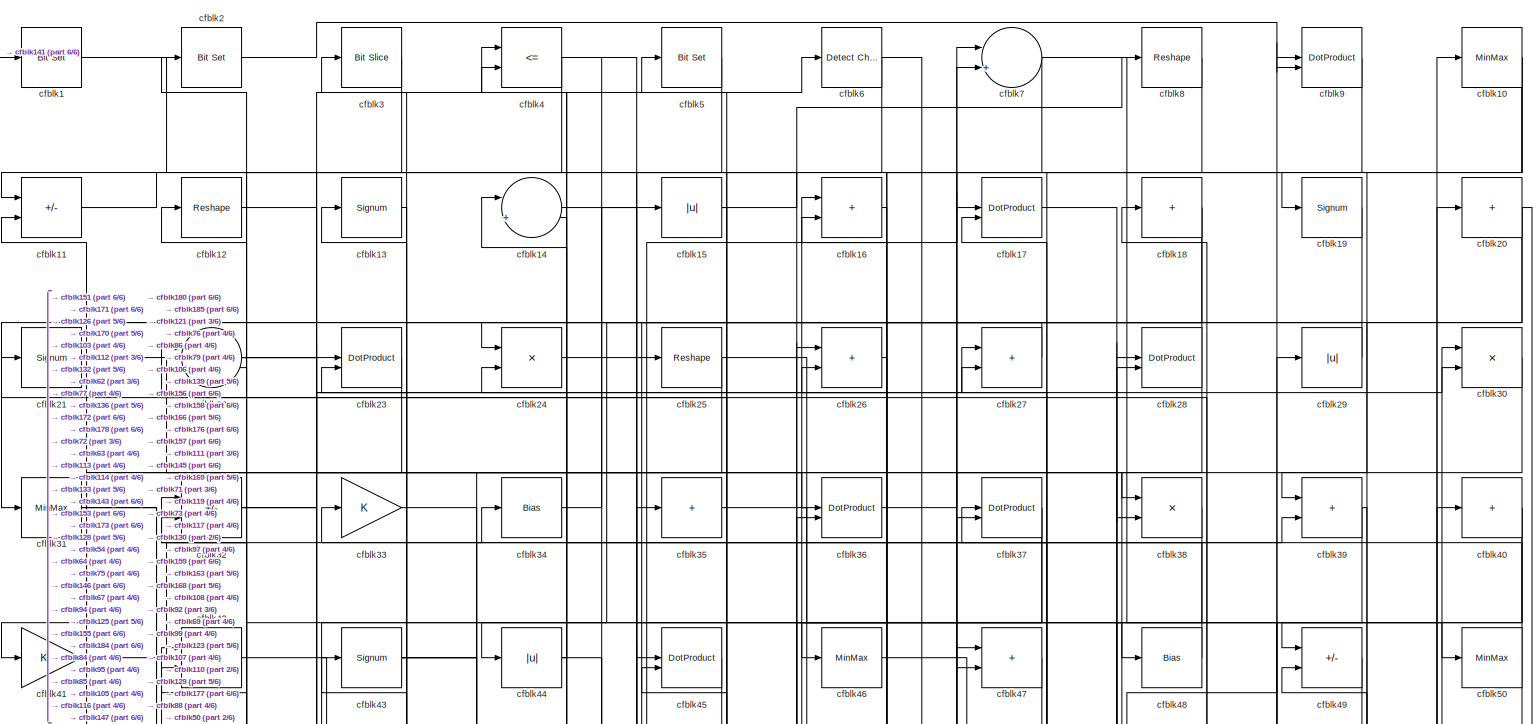
[diagram: root canvas - part 1/6, full width, top band]
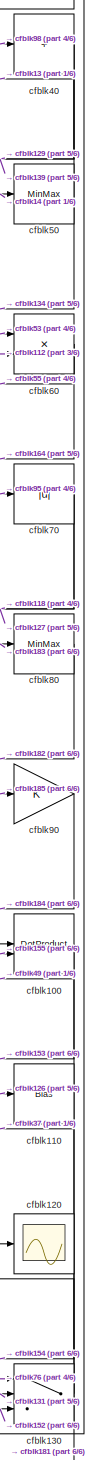
[diagram: root canvas - part 2/6, middle right region]
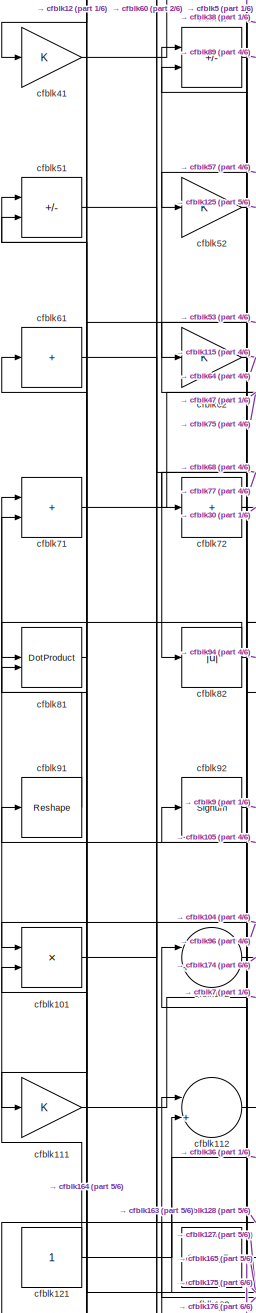
[diagram: root canvas - part 3/6, middle left region]
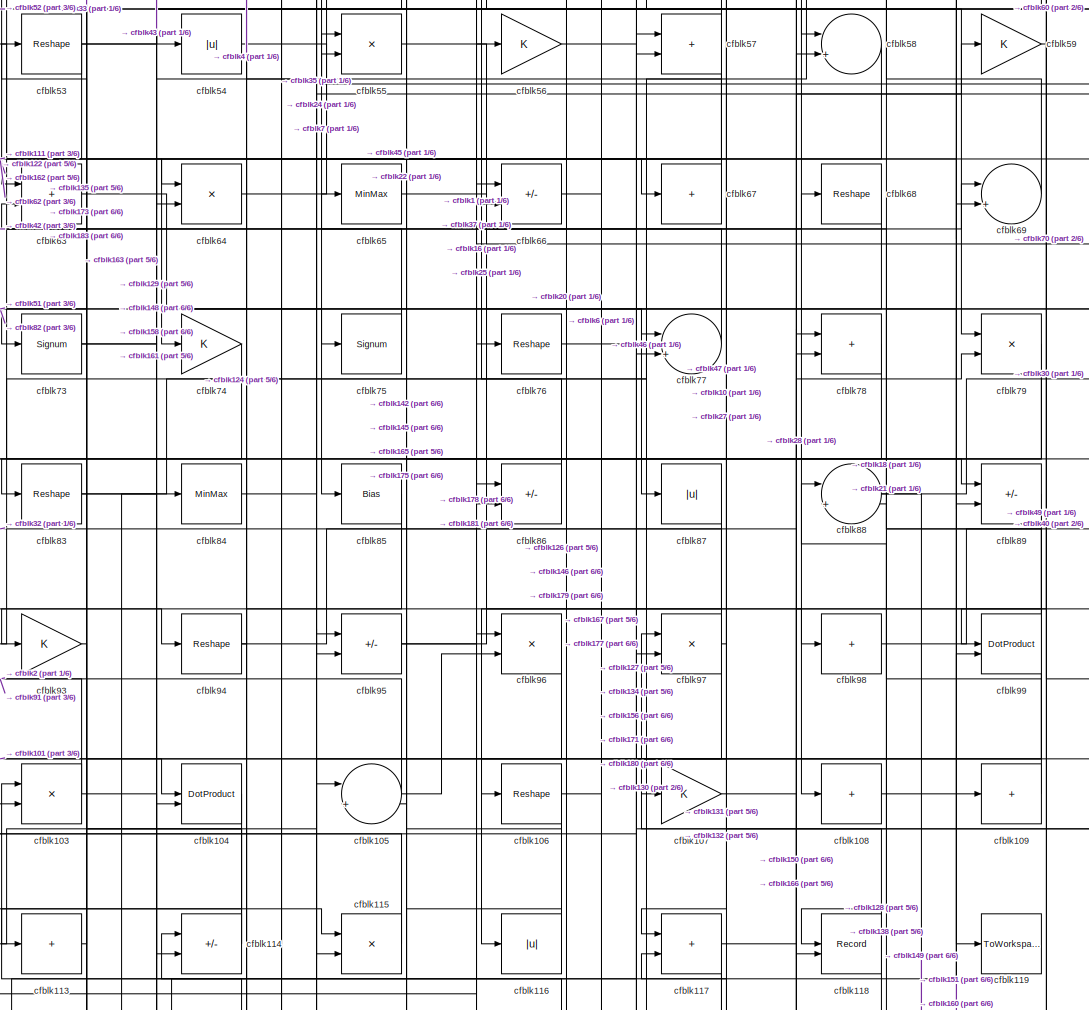
[diagram: root canvas - part 4/6, central region]
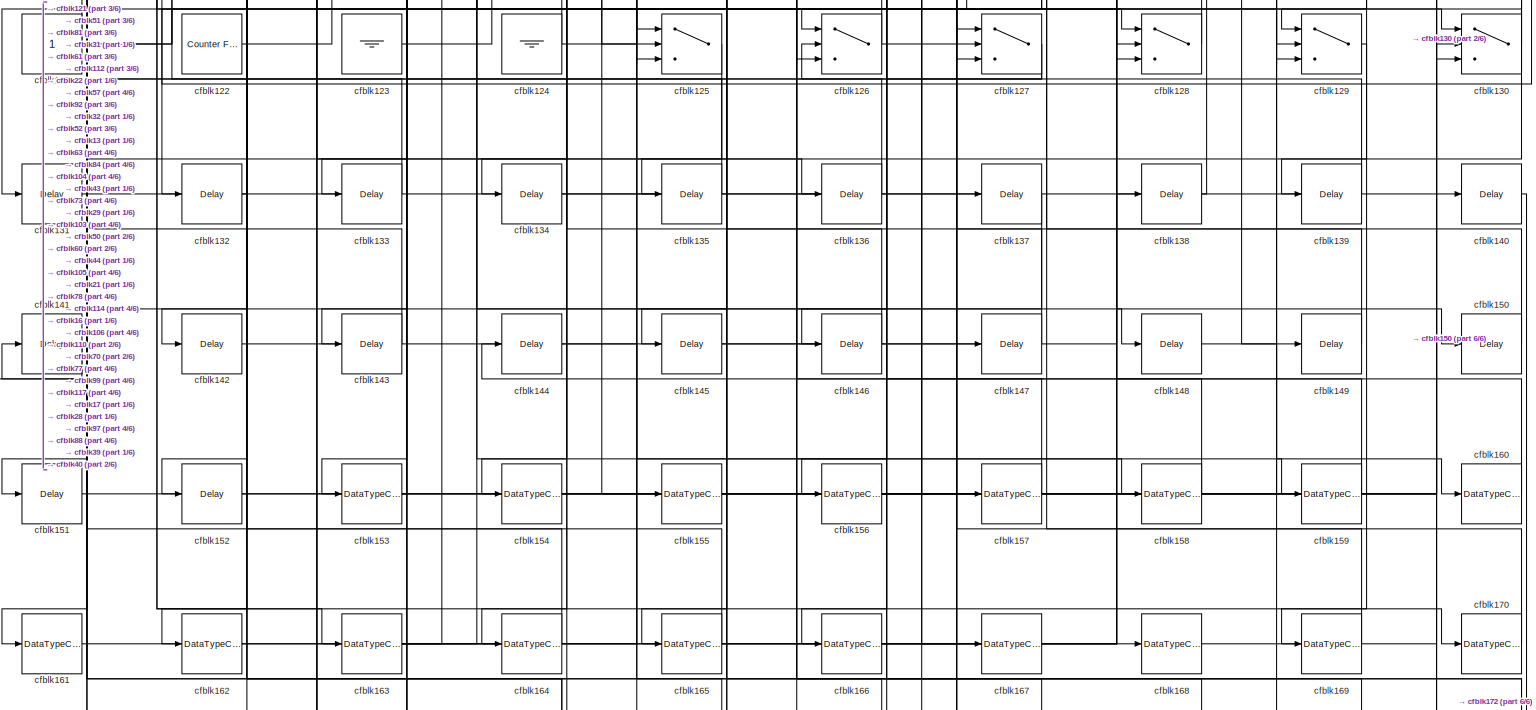
[diagram: root canvas - part 5/6, full width, bottom band]
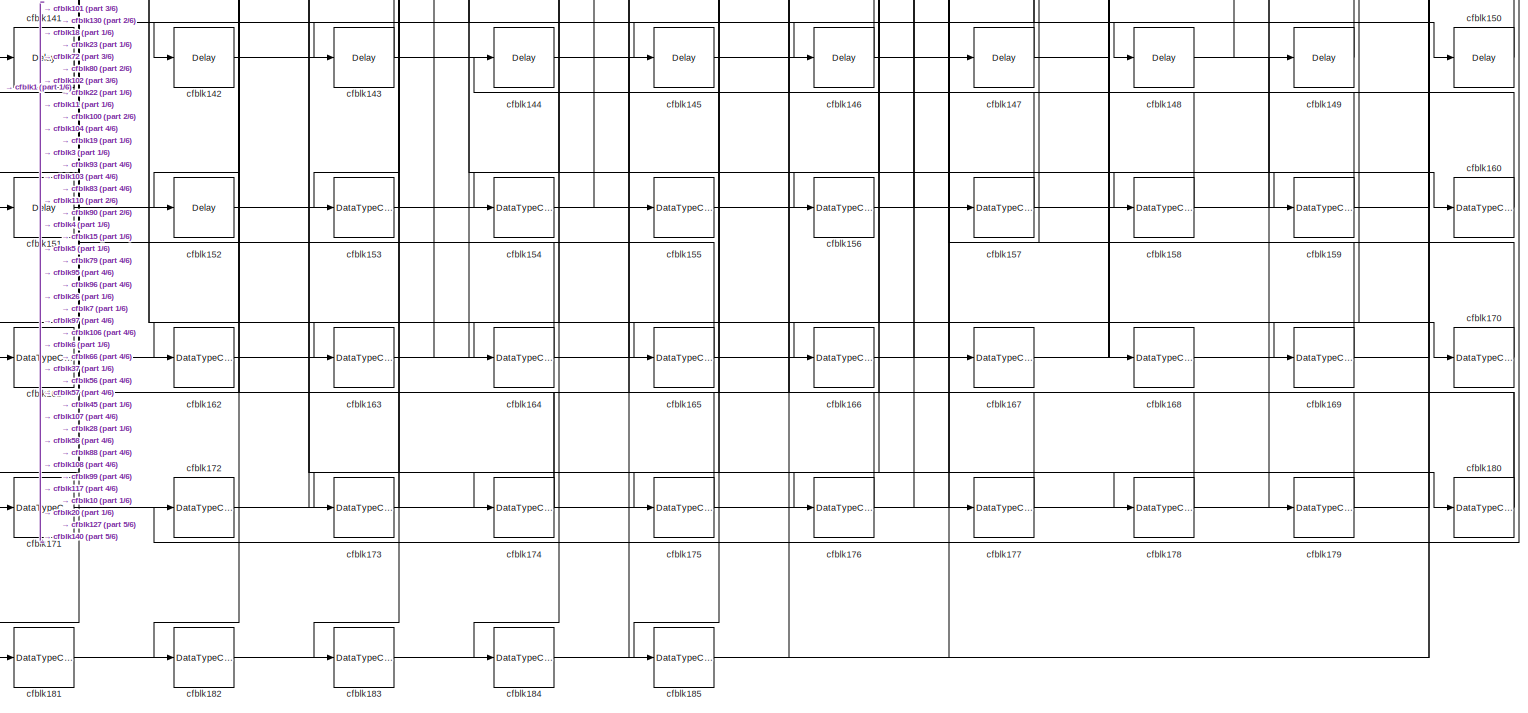
[diagram: root canvas - part 6/6, full width, bottom band]
MODEL slx_fd81477e99ef
KIND model
CONFIG AbsTol = auto
CONFIG EnableMultiTasking = off
CONFIG FixedStep = auto
CONFIG MaxStep = auto
CONFIG MinStep = auto
CONFIG RelTol = 1e-3
CONFIG SampleTimeConstraint = Unconstrained
CONFIG SolverName = VariableStepAuto
CONFIG StartTime = 0.0
CONFIG StopTime = 10.0
BLOCK [Reference] cfblk1  REF=simulink/Logic and Bit
Operations/Bit Set
  LibrarySourceBlock = hdlsllib/Logic and Bit\nOperations/Bit Set
  SourceBlock = simulink/Logic and Bit\nOperations/Bit Set
  SourceType = Bit Set
BLOCK [MinMax] cfblk10
BLOCK [DotProduct] cfblk100
  OutDataTypeStr = Inherit: Inherit via internal rule
BLOCK [Product] cfblk101
  Inputs = */
  RndMeth = Zero
  SaturateOnIntegerOverflow = on
BLOCK [Sum] cfblk102
  Inputs = |++
BLOCK [Product] cfblk103
  Inputs = */
  RndMeth = Zero
  SaturateOnIntegerOverflow = on
BLOCK [DotProduct] cfblk104
  OutDataTypeStr = Inherit: Inherit via internal rule
BLOCK [Sum] cfblk105
  Inputs = |++
BLOCK [Reshape] cfblk106
BLOCK [Gain] cfblk107
BLOCK [Sum] cfblk108
  IconShape = rectangular
  Inputs = +
BLOCK [Sum] cfblk109
  IconShape = rectangular
  Inputs = +
BLOCK [Sum] cfblk11
  IconShape = rectangular
  Inputs = +-
BLOCK [Bias] cfblk110
  Bias = 0.0
  SaturateOnIntegerOverflow = off
BLOCK [Gain] cfblk111
BLOCK [Sum] cfblk112
  Inputs = |++
BLOCK [Sum] cfblk113
  IconShape = rectangular
  Inputs = +
BLOCK [Sum] cfblk114
  IconShape = rectangular
  Inputs = +-
BLOCK [Product] cfblk115
  Inputs = */
  RndMeth = Zero
  SaturateOnIntegerOverflow = on
BLOCK [Abs] cfblk116
  SaturateOnIntegerOverflow = off
BLOCK [Sum] cfblk117
  IconShape = rectangular
BLOCK [Record] cfblk118
  CompatibilityTag = XY
  FileSettingsInternal = {"entries":[{"content":{"excelSettings":{"content":{},"type":"Streamout.ExcelSettings"}},"type":"Streamout.FileSettingStorage","uuid":""}],"packageUris":["http:\/\/schema.mathworks.com\/mf0\/streamout_blocks\/R2020a"],"version":"1.0"}
  Layout = [1 1]
  SignalsInternal = {"entries":[{"content":{"signals":[{"content":{"blockPath":[],"dimensions":[1],"domain":"","lineColor":"#a2142f","plots":[1],"port":1,"sid":[""],"signalID":379,"signalName":"cfblk70"},"type":"RecordBlkView.Signal","uuid":""},{"content":{"blockPath":[],"dimensions":[1],"domain":"","lineColor":"#139fff","plots":[1],"port":2,"sid":[""],"signalID":383,"signalName":"cfblk89"},"type":"RecordBlkView.Sign...<+160ch>
  VisualizationBindings = {"xyplotplugin":{"info":[{"series":[{"bindingParametersList":[{"parameter":"X-Axis","signalID":379,"signalName":"cfblk70"},{"parameter":"Y-Axis","signalID":383,"signalName":"cfblk89"}],"seriesID":8776}],"subplotID":1}]}}
  st = -1
BLOCK [ToWorkspace] cfblk119
  MaxDataPoints = inf
  SampleTime = -1
  SaveFormat = Timeseries
  VariableName = simout
BLOCK [Reshape] cfblk12
BLOCK [Scope] cfblk120
  Floating = off
  NumInputPorts = 1
  ScopeSpecificationString = Simulink.scopes.TimeScopeBlockCfg('CurrentConfiguration', extmgr.ConfigurationSet(extmgr.Configuration('Core','General UI',true),extmgr.Configuration('Core','Source UI',true),extmgr.Configuration('Sources','WiredSimulink',true,'DataLoggingVariableName','ScopeData2','DataLoggingSaveFormat','Array','DataLoggingLimitDataPoints',true,'DataLoggingDecimation','1'),extmgr.Configuration('Visuals','Time Do...<+868ch>
BLOCK [Constant] cfblk121
  SampleTime = -1
BLOCK [Reference] cfblk122  REF=hdlsllib/Sources/Counter
Free-Running
  SourceBlock = hdlsllib/Sources/Counter\nFree-Running
  SourceType = Counter Free-Running
BLOCK [Ground] cfblk123
BLOCK [Ground] cfblk124
BLOCK [Switch] cfblk125
  InputSameDT = off
  SaturateOnIntegerOverflow = off
BLOCK [Switch] cfblk126
  InputSameDT = off
  SaturateOnIntegerOverflow = off
BLOCK [Switch] cfblk127
  InputSameDT = off
  SaturateOnIntegerOverflow = off
BLOCK [Switch] cfblk128
  InputSameDT = off
  SaturateOnIntegerOverflow = off
BLOCK [Switch] cfblk129
  InputSameDT = off
  SaturateOnIntegerOverflow = off
BLOCK [Signum] cfblk13
BLOCK [Switch] cfblk130
  InputSameDT = off
  SaturateOnIntegerOverflow = off
BLOCK [Delay] cfblk131
  InputPortMap = u0
  SampleTime = 1
BLOCK [Delay] cfblk132
  InputPortMap = u0
  SampleTime = 1
BLOCK [Delay] cfblk133
  InputPortMap = u0
  SampleTime = 1
BLOCK [Delay] cfblk134
  InputPortMap = u0
  SampleTime = 1
BLOCK [Delay] cfblk135
  InputPortMap = u0
  SampleTime = 1
BLOCK [Delay] cfblk136
  InputPortMap = u0
  SampleTime = 1
BLOCK [Delay] cfblk137
  InputPortMap = u0
  SampleTime = 1
BLOCK [Delay] cfblk138
  InputPortMap = u0
  SampleTime = 1
BLOCK [Delay] cfblk139
  InputPortMap = u0
  SampleTime = 1
BLOCK [Sum] cfblk14
  Inputs = |++
BLOCK [Delay] cfblk140
  InputPortMap = u0
  SampleTime = 1
BLOCK [Delay] cfblk141
  InputPortMap = u0
  SampleTime = 1
BLOCK [Delay] cfblk142
  InputPortMap = u0
  SampleTime = 1
BLOCK [Delay] cfblk143
  InputPortMap = u0
  SampleTime = 1
BLOCK [Delay] cfblk144
  InputPortMap = u0
  SampleTime = 1
BLOCK [Delay] cfblk145
  InputPortMap = u0
  SampleTime = 1
BLOCK [Delay] cfblk146
  InputPortMap = u0
  SampleTime = 1
BLOCK [Delay] cfblk147
  InputPortMap = u0
  SampleTime = 1
BLOCK [Delay] cfblk148
  InputPortMap = u0
  SampleTime = 1
BLOCK [Delay] cfblk149
  InputPortMap = u0
  SampleTime = 1
BLOCK [Abs] cfblk15
  SaturateOnIntegerOverflow = off
BLOCK [Delay] cfblk150
  InputPortMap = u0
  SampleTime = 1
BLOCK [Delay] cfblk151
  InputPortMap = u0
  SampleTime = 1
BLOCK [Delay] cfblk152
  InputPortMap = u0
  SampleTime = 1
BLOCK [DataTypeConversion] cfblk153
  RndMeth = Floor
  SaturateOnIntegerOverflow = off
BLOCK [DataTypeConversion] cfblk154
  OutDataTypeStr = uint8
  RndMeth = Floor
  SaturateOnIntegerOverflow = off
BLOCK [DataTypeConversion] cfblk155
  OutDataTypeStr = uint8
  RndMeth = Floor
  SaturateOnIntegerOverflow = off
BLOCK [DataTypeConversion] cfblk156
  OutDataTypeStr = uint8
  RndMeth = Floor
  SaturateOnIntegerOverflow = off
BLOCK [DataTypeConversion] cfblk157
  OutDataTypeStr = uint8
  RndMeth = Floor
  SaturateOnIntegerOverflow = off
BLOCK [DataTypeConversion] cfblk158
  OutDataTypeStr = uint8
  RndMeth = Floor
  SaturateOnIntegerOverflow = off
BLOCK [DataTypeConversion] cfblk159
  OutDataTypeStr = uint8
  RndMeth = Floor
  SaturateOnIntegerOverflow = off
BLOCK [Sum] cfblk16
  IconShape = rectangular
BLOCK [DataTypeConversion] cfblk160
  OutDataTypeStr = uint8
  RndMeth = Floor
  SaturateOnIntegerOverflow = off
BLOCK [DataTypeConversion] cfblk161
  OutDataTypeStr = uint8
  RndMeth = Floor
  SaturateOnIntegerOverflow = off
BLOCK [DataTypeConversion] cfblk162
  OutDataTypeStr = uint8
  RndMeth = Floor
  SaturateOnIntegerOverflow = off
BLOCK [DataTypeConversion] cfblk163
  RndMeth = Floor
  SaturateOnIntegerOverflow = off
BLOCK [DataTypeConversion] cfblk164
  OutDataTypeStr = uint8
  RndMeth = Floor
  SaturateOnIntegerOverflow = off
BLOCK [DataTypeConversion] cfblk165
  RndMeth = Floor
  SaturateOnIntegerOverflow = off
BLOCK [DataTypeConversion] cfblk166
  OutDataTypeStr = uint8
  RndMeth = Floor
  SaturateOnIntegerOverflow = off
BLOCK [DataTypeConversion] cfblk167
  OutDataTypeStr = uint8
  RndMeth = Floor
  SaturateOnIntegerOverflow = off
BLOCK [DataTypeConversion] cfblk168
  OutDataTypeStr = uint8
  RndMeth = Floor
  SaturateOnIntegerOverflow = off
BLOCK [DataTypeConversion] cfblk169
  OutDataTypeStr = uint8
  RndMeth = Floor
  SaturateOnIntegerOverflow = off
BLOCK [DotProduct] cfblk17
  OutDataTypeStr = Inherit: Inherit via internal rule
BLOCK [DataTypeConversion] cfblk170
  OutDataTypeStr = uint8
  RndMeth = Floor
  SaturateOnIntegerOverflow = off
BLOCK [DataTypeConversion] cfblk171
  OutDataTypeStr = uint8
  RndMeth = Floor
  SaturateOnIntegerOverflow = off
BLOCK [DataTypeConversion] cfblk172
  OutDataTypeStr = uint8
  RndMeth = Floor
  SaturateOnIntegerOverflow = off
BLOCK [DataTypeConversion] cfblk173
  OutDataTypeStr = uint8
  RndMeth = Floor
  SaturateOnIntegerOverflow = off
BLOCK [DataTypeConversion] cfblk174
  RndMeth = Floor
  SaturateOnIntegerOverflow = off
BLOCK [DataTypeConversion] cfblk175
  OutDataTypeStr = uint8
  RndMeth = Floor
  SaturateOnIntegerOverflow = off
BLOCK [DataTypeConversion] cfblk176
  OutDataTypeStr = uint8
  RndMeth = Floor
  SaturateOnIntegerOverflow = off
BLOCK [DataTypeConversion] cfblk177
  RndMeth = Floor
  SaturateOnIntegerOverflow = off
BLOCK [DataTypeConversion] cfblk178
  OutDataTypeStr = uint8
  RndMeth = Floor
  SaturateOnIntegerOverflow = off
BLOCK [DataTypeConversion] cfblk179
  OutDataTypeStr = uint8
  RndMeth = Floor
  SaturateOnIntegerOverflow = off
BLOCK [Sum] cfblk18
  IconShape = rectangular
  Inputs = +
BLOCK [DataTypeConversion] cfblk180
  RndMeth = Floor
  SaturateOnIntegerOverflow = off
BLOCK [DataTypeConversion] cfblk181
  OutDataTypeStr = uint8
  RndMeth = Floor
  SaturateOnIntegerOverflow = off
BLOCK [DataTypeConversion] cfblk182
  OutDataTypeStr = uint8
  RndMeth = Floor
  SaturateOnIntegerOverflow = off
BLOCK [DataTypeConversion] cfblk183
  OutDataTypeStr = uint8
  RndMeth = Floor
  SaturateOnIntegerOverflow = off
BLOCK [DataTypeConversion] cfblk184
  OutDataTypeStr = uint8
  RndMeth = Floor
  SaturateOnIntegerOverflow = off
BLOCK [DataTypeConversion] cfblk185
  OutDataTypeStr = uint8
  RndMeth = Floor
  SaturateOnIntegerOverflow = off
BLOCK [Signum] cfblk19
BLOCK [Reference] cfblk2  REF=simulink/Logic and Bit
Operations/Bit Set
  LibrarySourceBlock = hdlsllib/Logic and Bit\nOperations/Bit Set
  SourceBlock = simulink/Logic and Bit\nOperations/Bit Set
  SourceType = Bit Set
BLOCK [Sum] cfblk20
  IconShape = rectangular
  Inputs = +
BLOCK [Signum] cfblk21
BLOCK [Sum] cfblk22
  Inputs = |++
BLOCK [DotProduct] cfblk23
  OutDataTypeStr = Inherit: Inherit via internal rule
BLOCK [Product] cfblk24
  Inputs = */
  RndMeth = Zero
  SaturateOnIntegerOverflow = on
BLOCK [Reshape] cfblk25
BLOCK [Sum] cfblk26
  IconShape = rectangular
BLOCK [Sum] cfblk27
  IconShape = rectangular
BLOCK [DotProduct] cfblk28
  OutDataTypeStr = Inherit: Inherit via internal rule
BLOCK [Abs] cfblk29
  SaturateOnIntegerOverflow = off
BLOCK [Reference] cfblk3  REF=hdlsllib/Logic and Bit
Operations/Bit Slice
  SourceBlock = hdlsllib/Logic and Bit\nOperations/Bit Slice
  SourceType = Bit Slice
BLOCK [Product] cfblk30
  Inputs = */
  RndMeth = Zero
  SaturateOnIntegerOverflow = on
BLOCK [MinMax] cfblk31
BLOCK [Sum] cfblk32
  IconShape = rectangular
  Inputs = +-
BLOCK [Gain] cfblk33
BLOCK [Bias] cfblk34
  Bias = 0.0
  SaturateOnIntegerOverflow = off
BLOCK [Sum] cfblk35
  IconShape = rectangular
  Inputs = +
BLOCK [DotProduct] cfblk36
  OutDataTypeStr = Inherit: Inherit via internal rule
BLOCK [DotProduct] cfblk37
  OutDataTypeStr = Inherit: Inherit via internal rule
BLOCK [Product] cfblk38
  Inputs = */
  RndMeth = Zero
  SaturateOnIntegerOverflow = on
BLOCK [Sum] cfblk39
  IconShape = rectangular
BLOCK [RelationalOperator] cfblk4
  InputSameDT = off
  Operator = <=
  OutDataTypeStr = boolean
BLOCK [Sum] cfblk40
  IconShape = rectangular
  Inputs = +
BLOCK [Gain] cfblk41
BLOCK [Sum] cfblk42
  IconShape = rectangular
  Inputs = +-
BLOCK [Signum] cfblk43
BLOCK [Abs] cfblk44
  SaturateOnIntegerOverflow = off
BLOCK [DotProduct] cfblk45
  OutDataTypeStr = Inherit: Inherit via internal rule
BLOCK [MinMax] cfblk46
BLOCK [Sum] cfblk47
  IconShape = rectangular
BLOCK [Bias] cfblk48
  Bias = 0.0
  SaturateOnIntegerOverflow = off
BLOCK [Sum] cfblk49
  IconShape = rectangular
  Inputs = +-
BLOCK [Reference] cfblk5  REF=simulink/Logic and Bit
Operations/Bit Set
  LibrarySourceBlock = hdlsllib/Logic and Bit\nOperations/Bit Set
  SourceBlock = simulink/Logic and Bit\nOperations/Bit Set
  SourceType = Bit Set
BLOCK [MinMax] cfblk50
BLOCK [Sum] cfblk51
  IconShape = rectangular
  Inputs = +-
BLOCK [Gain] cfblk52
BLOCK [Reshape] cfblk53
BLOCK [Abs] cfblk54
  SaturateOnIntegerOverflow = off
BLOCK [Product] cfblk55
  Inputs = */
  RndMeth = Zero
  SaturateOnIntegerOverflow = on
BLOCK [Gain] cfblk56
BLOCK [Sum] cfblk57
  IconShape = rectangular
BLOCK [Sum] cfblk58
  Inputs = |++
BLOCK [Gain] cfblk59
BLOCK [Reference] cfblk6  REF=simulink/Logic and Bit
Operations/Detect
Change
  LibrarySourceBlock = hdlsllib/Logic and Bit\nOperations/Detect\nChange
  SourceBlock = simulink/Logic and Bit\nOperations/Detect\nChange
  SourceType = Detect Change
BLOCK [Product] cfblk60
  Inputs = */
  RndMeth = Zero
  SaturateOnIntegerOverflow = on
BLOCK [Sum] cfblk61
  IconShape = rectangular
  Inputs = +
BLOCK [Gain] cfblk62
BLOCK [Sum] cfblk63
  IconShape = rectangular
BLOCK [Product] cfblk64
  Inputs = */
  RndMeth = Zero
  SaturateOnIntegerOverflow = on
BLOCK [MinMax] cfblk65
BLOCK [Sum] cfblk66
  IconShape = rectangular
  Inputs = +-
BLOCK [Sum] cfblk67
  IconShape = rectangular
  Inputs = +
BLOCK [Reshape] cfblk68
BLOCK [Sum] cfblk69
  Inputs = |++
BLOCK [Sum] cfblk7
  Inputs = |++
BLOCK [Abs] cfblk70
  SaturateOnIntegerOverflow = off
BLOCK [Sum] cfblk71
  IconShape = rectangular
BLOCK [Sum] cfblk72
  IconShape = rectangular
  Inputs = +
BLOCK [Signum] cfblk73
BLOCK [Gain] cfblk74
BLOCK [Signum] cfblk75
BLOCK [Reshape] cfblk76
BLOCK [Sum] cfblk77
  Inputs = |++
BLOCK [Sum] cfblk78
  IconShape = rectangular
BLOCK [Product] cfblk79
  Inputs = */
  RndMeth = Zero
  SaturateOnIntegerOverflow = on
BLOCK [Reshape] cfblk8
BLOCK [MinMax] cfblk80
BLOCK [DotProduct] cfblk81
  OutDataTypeStr = Inherit: Inherit via internal rule
BLOCK [Abs] cfblk82
  SaturateOnIntegerOverflow = off
BLOCK [Reshape] cfblk83
BLOCK [MinMax] cfblk84
BLOCK [Bias] cfblk85
  Bias = 0.0
  SaturateOnIntegerOverflow = off
BLOCK [Sum] cfblk86
  IconShape = rectangular
  Inputs = +-
BLOCK [Abs] cfblk87
  SaturateOnIntegerOverflow = off
BLOCK [Sum] cfblk88
  Inputs = |++
BLOCK [Sum] cfblk89
  IconShape = rectangular
  Inputs = +-
BLOCK [DotProduct] cfblk9
  OutDataTypeStr = Inherit: Inherit via internal rule
BLOCK [Gain] cfblk90
BLOCK [Reshape] cfblk91
BLOCK [Signum] cfblk92
BLOCK [Gain] cfblk93
BLOCK [Reshape] cfblk94
BLOCK [Sum] cfblk95
  IconShape = rectangular
  Inputs = +-
BLOCK [Product] cfblk96
  Inputs = */
  RndMeth = Zero
  SaturateOnIntegerOverflow = on
BLOCK [Product] cfblk97
  Inputs = */
  RndMeth = Zero
  SaturateOnIntegerOverflow = on
BLOCK [Sum] cfblk98
  IconShape = rectangular
  Inputs = +
BLOCK [DotProduct] cfblk99
  OutDataTypeStr = Inherit: Inherit via internal rule
LINE cfblk100:1 -> cfblk153:1
LINE cfblk101:1 -> cfblk104:1
LINE cfblk102:1 -> cfblk174:1
NET cfblk103:1 -> cfblk158:1, cfblk2:1
LINE cfblk104:1 -> cfblk173:1
NET cfblk105:1 -> cfblk91:1, cfblk96:2
NET cfblk106:1 -> cfblk145:1, cfblk167:1
LINE cfblk107:1 -> cfblk150:1
LINE cfblk108:1 -> cfblk160:1
LINE cfblk109:1 -> cfblk88:2
NET cfblk10:1 -> cfblk117:1, cfblk49:1, cfblk95:2
NET cfblk110:1 -> cfblk154:1, cfblk49:2
LINE cfblk111:1 -> cfblk7:2
NET cfblk112:1 -> cfblk12:1, cfblk60:2
LINE cfblk113:1 -> cfblk33:1
NET cfblk114:1 -> cfblk43:1, cfblk53:1
LINE cfblk115:1 -> cfblk42:2
LINE cfblk116:1 -> cfblk22:1
NET cfblk117:1 -> cfblk131:1, cfblk132:1, cfblk59:1
LINE cfblk11:1 -> cfblk19:1
NET cfblk121:1 -> cfblk128:1, cfblk36:2, cfblk71:1
LINE cfblk122:1 -> cfblk97:2
LINE cfblk123:1 -> cfblk29:1
NET cfblk124:1 -> cfblk103:1, cfblk126:1
LINE cfblk125:1 -> cfblk135:1
NET cfblk126:1 -> cfblk110:1, cfblk114:1
NET cfblk127:1 -> cfblk112:2, cfblk126:2
LINE cfblk128:1 -> cfblk97:1
LINE cfblk129:1 -> cfblk169:1
LINE cfblk12:1 -> cfblk36:1
NET cfblk130:1 -> cfblk120:1, cfblk181:1, cfblk37:1
LINE cfblk131:1 -> cfblk130:2
LINE cfblk132:1 -> cfblk22:2
LINE cfblk133:1 -> cfblk81:2
LINE cfblk134:1 -> cfblk77:2
LINE cfblk135:1 -> cfblk63:2
LINE cfblk136:1 -> cfblk51:2
LINE cfblk137:1 -> cfblk161:1
LINE cfblk138:1 -> cfblk88:1
LINE cfblk139:1 -> cfblk16:2
LINE cfblk13:1 -> cfblk133:1
LINE cfblk140:1 -> cfblk172:1
LINE cfblk141:1 -> cfblk1:1
LINE cfblk142:1 -> cfblk58:2
LINE cfblk143:1 -> cfblk11:2
LINE cfblk144:1 -> cfblk159:1
LINE cfblk145:1 -> cfblk37:2
LINE cfblk146:1 -> cfblk4:2
LINE cfblk147:1 -> cfblk45:2
LINE cfblk148:1 -> cfblk179:1
LINE cfblk149:1 -> cfblk117:2
LINE cfblk14:1 -> cfblk50:1
LINE cfblk150:1 -> cfblk127:1
LINE cfblk151:1 -> cfblk99:2
LINE cfblk152:1 -> cfblk130:3
NET cfblk153:1 -> cfblk20:1, cfblk3:1
LINE cfblk154:1 -> cfblk100:1
LINE cfblk155:1 -> cfblk100:2
LINE cfblk156:1 -> cfblk57:2
LINE cfblk157:1 -> cfblk26:1
LINE cfblk158:1 -> cfblk26:2
LINE cfblk159:1 -> cfblk28:1
NET cfblk15:1 -> cfblk185:1, cfblk8:1
LINE cfblk160:1 -> cfblk144:1
LINE cfblk161:1 -> cfblk104:2
LINE cfblk162:1 -> cfblk137:1
NET cfblk163:1 -> cfblk105:1, cfblk28:2, cfblk84:1
LINE cfblk164:1 -> cfblk61:1
NET cfblk165:1 -> cfblk138:1, cfblk92:1
LINE cfblk166:1 -> cfblk78:1
LINE cfblk167:1 -> cfblk78:2
LINE cfblk168:1 -> cfblk140:1
LINE cfblk169:1 -> cfblk17:1
LINE cfblk16:1 -> cfblk166:1
LINE cfblk170:1 -> cfblk17:2
LINE cfblk171:1 -> cfblk57:1
LINE cfblk172:1 -> cfblk23:1
LINE cfblk173:1 -> cfblk23:2
NET cfblk174:1 -> cfblk101:2, cfblk141:1
LINE cfblk175:1 -> cfblk102:1
LINE cfblk176:1 -> cfblk102:2
NET cfblk177:1 -> cfblk10:1, cfblk96:1
LINE cfblk178:1 -> cfblk66:1
LINE cfblk179:1 -> cfblk66:2
LINE cfblk17:1 -> cfblk168:1
NET cfblk180:1 -> cfblk5:1, cfblk95:1
LINE cfblk181:1 -> cfblk56:1
LINE cfblk182:1 -> cfblk147:1
LINE cfblk183:1 -> cfblk80:1
LINE cfblk184:1 -> cfblk45:1
LINE cfblk185:1 -> cfblk90:1
NET cfblk18:1 -> cfblk151:1, cfblk31:1
LINE cfblk19:1 -> cfblk143:1
LINE cfblk1:1 -> cfblk76:1
NET cfblk20:1 -> cfblk106:1, cfblk112:1, cfblk39:1
LINE cfblk21:1 -> cfblk125:1
NET cfblk22:1 -> cfblk178:1, cfblk38:2, cfblk6:1
LINE cfblk23:1 -> cfblk171:1
LINE cfblk24:1 -> cfblk85:1
NET cfblk25:1 -> cfblk64:2, cfblk79:1
LINE cfblk26:1 -> cfblk156:1
LINE cfblk27:1 -> cfblk44:1
NET cfblk28:1 -> cfblk108:1, cfblk25:1
LINE cfblk29:1 -> cfblk24:1
LINE cfblk2:1 -> cfblk9:2
LINE cfblk30:1 -> cfblk41:1
NET cfblk31:1 -> cfblk126:3, cfblk170:1
NET cfblk32:1 -> cfblk136:1, cfblk27:1
LINE cfblk33:1 -> cfblk54:1
LINE cfblk34:1 -> cfblk15:1
LINE cfblk35:1 -> cfblk48:1
LINE cfblk36:1 -> cfblk38:1
NET cfblk37:1 -> cfblk63:1, cfblk86:2
LINE cfblk38:1 -> cfblk62:1
NET cfblk39:1 -> cfblk128:2, cfblk129:1
LINE cfblk3:1 -> cfblk11:1
NET cfblk40:1 -> cfblk129:2, cfblk139:1
LINE cfblk41:1 -> cfblk34:1
LINE cfblk42:1 -> cfblk89:1
NET cfblk43:1 -> cfblk128:3, cfblk39:2, cfblk75:1
NET cfblk44:1 -> cfblk125:2, cfblk14:2
LINE cfblk45:1 -> cfblk114:2
LINE cfblk46:1 -> cfblk119:1
LINE cfblk47:1 -> cfblk73:1
LINE cfblk48:1 -> cfblk14:1
LINE cfblk49:1 -> cfblk107:1
NET cfblk4:1 -> cfblk103:2, cfblk155:1, cfblk67:1
NET cfblk50:1 -> cfblk134:1, cfblk13:1
LINE cfblk51:1 -> cfblk77:1
NET cfblk52:1 -> cfblk125:3, cfblk89:2
NET cfblk53:1 -> cfblk111:1, cfblk58:1, cfblk60:1
LINE cfblk54:1 -> cfblk86:1
LINE cfblk55:1 -> cfblk98:1
LINE cfblk56:1 -> cfblk180:1
NET cfblk57:1 -> cfblk113:1, cfblk162:1, cfblk52:1
LINE cfblk58:1 -> cfblk74:1
LINE cfblk59:1 -> cfblk99:1
LINE cfblk5:1 -> cfblk72:1
NET cfblk60:1 -> cfblk164:1, cfblk55:2
LINE cfblk61:1 -> cfblk163:1
NET cfblk62:1 -> cfblk115:1, cfblk64:1
LINE cfblk63:1 -> cfblk87:1
LINE cfblk64:1 -> cfblk7:1
LINE cfblk65:1 -> cfblk109:1
LINE cfblk66:1 -> cfblk177:1
LINE cfblk67:1 -> cfblk24:2
LINE cfblk68:1 -> cfblk82:1
LINE cfblk69:1 -> cfblk21:1
NET cfblk6:1 -> cfblk105:2, cfblk157:1
NET cfblk70:1 -> cfblk118:1, cfblk127:3
LINE cfblk71:1 -> cfblk47:1
NET cfblk72:1 -> cfblk152:1, cfblk30:2
NET cfblk73:1 -> cfblk129:3, cfblk55:1
LINE cfblk74:1 -> cfblk83:1
LINE cfblk75:1 -> cfblk42:1
LINE cfblk76:1 -> cfblk130:1
LINE cfblk77:1 -> cfblk32:2
LINE cfblk78:1 -> cfblk165:1
NET cfblk79:1 -> cfblk142:1, cfblk175:1
NET cfblk7:1 -> cfblk176:1, cfblk69:2
LINE cfblk80:1 -> cfblk182:1
LINE cfblk81:1 -> cfblk51:1
NET cfblk82:1 -> cfblk81:1, cfblk94:1
NET cfblk83:1 -> cfblk148:1, cfblk68:1
LINE cfblk84:1 -> cfblk35:1
LINE cfblk85:1 -> cfblk93:1
LINE cfblk86:1 -> cfblk16:1
LINE cfblk87:1 -> cfblk116:1
NET cfblk88:1 -> cfblk149:1, cfblk30:1
LINE cfblk89:1 -> cfblk118:2
LINE cfblk8:1 -> cfblk46:1
LINE cfblk90:1 -> cfblk184:1
LINE cfblk91:1 -> cfblk71:2
LINE cfblk92:1 -> cfblk9:1
LINE cfblk93:1 -> cfblk183:1
NET cfblk94:1 -> cfblk4:1, cfblk79:2
NET cfblk95:1 -> cfblk69:1, cfblk70:1
LINE cfblk96:1 -> cfblk101:1
NET cfblk97:1 -> cfblk146:1, cfblk27:2, cfblk32:1
LINE cfblk98:1 -> cfblk40:1
NET cfblk99:1 -> cfblk115:2, cfblk127:2, cfblk18:1, cfblk65:1
LINE cfblk9:1 -> cfblk47:2
note: NET lines group one-source signal fan-out (src -> all destinations, sorted); 1:1 wires keep LINE
